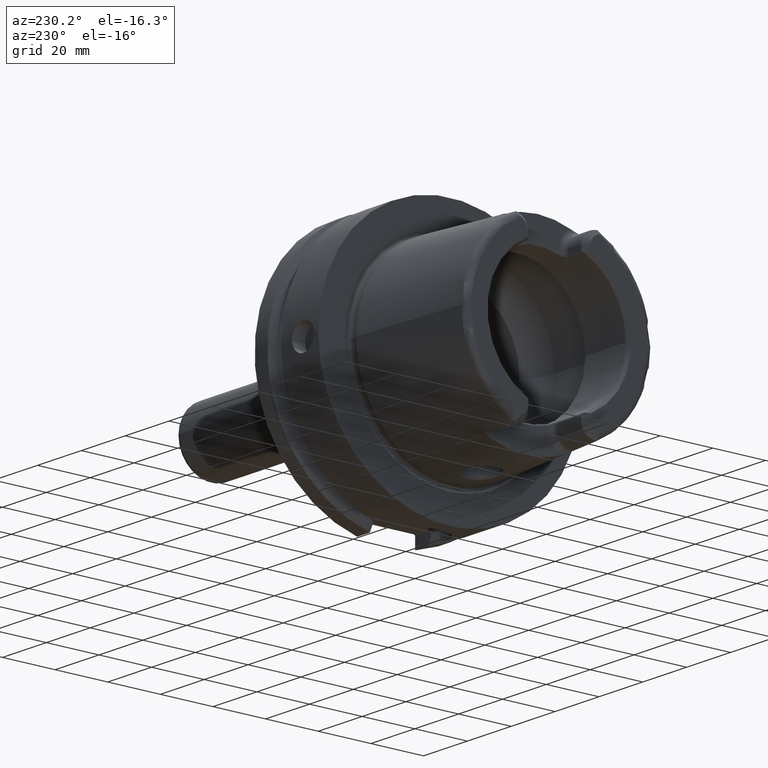
[diagram: clean part render]
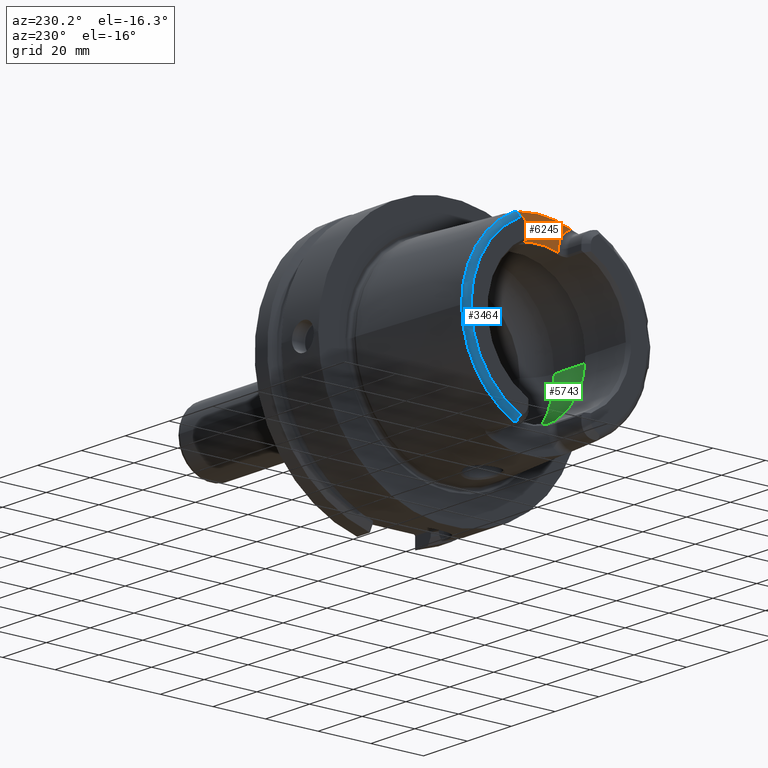
[diagram: same view with three faces highlighted in distinct colors, each labeled with its STEP entity id]
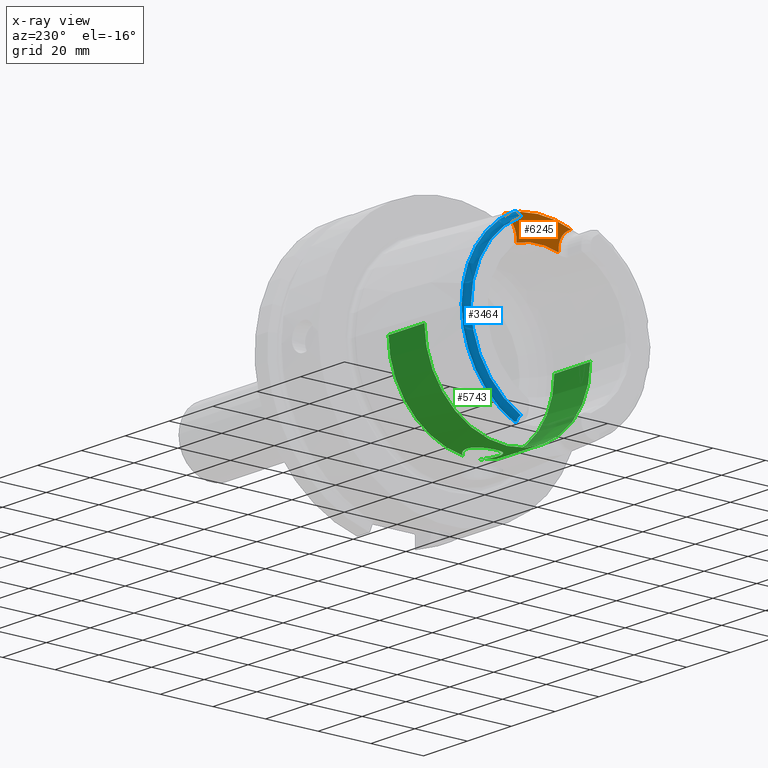
[diagram: x-ray of the same camera — body ghosted, the three highlighted faces saturated]
A machine part, auxiliary view with three faces highlighted in distinct colors.
The next image is the same camera in x-ray (body ghosted, the three faces saturated) — at least one of them is partly hidden behind the body in this view.
Their STEP definitions:

[orange] entity #6245 — the highlighted planar face has unit normal (-1, 0, 0).
#9=CARTESIAN_POINT('',(-4.E1,0.E0,0.E0));
#10=DIRECTION('',(1.E0,0.E0,0.E0));
#11=DIRECTION('',(0.E0,3.574556786365E-1,9.339301032789E-1));
#12=AXIS2_PLACEMENT_3D('',#9,#10,#11);
#2548=DIRECTION('',(0.E0,5.174062213620E-12,1.E0));
#2549=VECTOR('',#2548,1.199558594508E0);
#2550=CARTESIAN_POINT('',(-4.E1,8.009999999994E0,2.576044140549E1));
#2551=LINE('',#2550,#2549);
#2552=CARTESIAN_POINT('',(-4.E1,1.501E1,2.696E1));
#2553=DIRECTION('',(-1.E0,0.E0,0.E0));
#2554=DIRECTION('',(0.E0,-1.E0,0.E0));
#2555=AXIS2_PLACEMENT_3D('',#2552,#2553,#2554);
#2557=CARTESIAN_POINT('',(-4.E1,-1.501E1,2.696E1));
#2558=DIRECTION('',(-1.E0,0.E0,0.E0));
#2559=DIRECTION('',(0.E0,3.057634963159E-1,9.521074962002E-1));
#2560=AXIS2_PLACEMENT_3D('',#2557,#2558,#2559);
#2562=DIRECTION('',(0.E0,6.866664706538E-12,-1.E0));
#2563=VECTOR('',#2562,1.199558594503E0);
#2564=CARTESIAN_POINT('',(-4.E1,-8.010000000001E0,2.695999999999E1));
#2565=LINE('',#2564,#2563);
#2566=CARTESIAN_POINT('',(-4.E1,8.009999999994E0,2.576044140549E1));
#2567=CARTESIAN_POINT('',(-4.E1,7.269616392493E0,2.599521452766E1));
#2568=CARTESIAN_POINT('',(-4.E1,5.774680607733E0,2.639793295020E1));
#2569=CARTESIAN_POINT('',(-4.E1,3.481759859025E0,2.680464578135E1));
#2570=CARTESIAN_POINT('',(-4.E1,1.163574268407E0,2.700848033442E1));
#2571=CARTESIAN_POINT('',(-4.E1,-1.163574229637E0,2.700848033529E1));
#2572=CARTESIAN_POINT('',(-4.E1,-3.481759771637E0,2.680464579107E1));
#2573=CARTESIAN_POINT('',(-4.E1,-5.774680487919E0,2.639793297771E1));
#2574=CARTESIAN_POINT('',(-4.E1,-7.269616343063E0,2.599521454333E1));
#2575=CARTESIAN_POINT('',(-4.E1,-8.009999999993E0,2.576044140549E1));
#2761=CARTESIAN_POINT('',(-4.E1,8.01E0,2.696E1));
#2763=VERTEX_POINT('',#2761);
#2765=CARTESIAN_POINT('',(-4.E1,-8.01E0,2.696E1));
#2767=VERTEX_POINT('',#2765);
#2769=CARTESIAN_POINT('',(-4.E1,1.286965552579E1,3.362475247340E1));
#2770=VERTEX_POINT('',#2769);
#2775=CARTESIAN_POINT('',(-4.E1,-1.286965552579E1,3.362475247340E1));
#2776=VERTEX_POINT('',#2775);
#2817=CARTESIAN_POINT('',(-4.E1,8.009999999994E0,2.576044140549E1));
#2818=VERTEX_POINT('',#2817);
#2819=CARTESIAN_POINT('',(-4.E1,-8.009999999993E0,2.576044140549E1));
#2820=VERTEX_POINT('',#2819);
#6230=CARTESIAN_POINT('',(-4.E1,0.E0,0.E0));
#6231=DIRECTION('',(-1.E0,0.E0,0.E0));
#6232=DIRECTION('',(0.E0,0.E0,1.E0));
#6233=AXIS2_PLACEMENT_3D('',#6230,#6231,#6232);
#6234=PLANE('',#6233);
#6235=ORIENTED_EDGE('',*,*,#3379,.T.);
#6236=ORIENTED_EDGE('',*,*,#3397,.T.);
#6237=ORIENTED_EDGE('',*,*,#3164,.T.);
#6239=ORIENTED_EDGE('',*,*,#6238,.T.);
#6241=ORIENTED_EDGE('',*,*,#6240,.T.);
#6242=ORIENTED_EDGE('',*,*,#6221,.F.);
#6243=EDGE_LOOP('',(#6235,#6236,#6237,#6239,#6241,#6242));
#6244=FACE_OUTER_BOUND('',#6243,.F.);
#6245=ADVANCED_FACE('',(#6244),#6234,.T.);
#13=CIRCLE('',#12,3.60035E1);
#2556=CIRCLE('',#2555,7.E0);
#2561=CIRCLE('',#2560,7.E0);
#2576=B_SPLINE_CURVE_WITH_KNOTS('',3,(#2566,#2567,#2568,#2569,#2570,#2571,#2572,
#2573,#2574,#2575),.UNSPECIFIED.,.F.,.F.,(4,1,1,1,1,1,1,4),(0.E0,
1.428571428571E-1,2.857142857143E-1,4.285714285714E-1,5.714285714286E-1,
7.142857142857E-1,8.571428571429E-1,1.E0),.UNSPECIFIED.);
#3164=EDGE_CURVE('',#2770,#2776,#13,.T.);
#3379=EDGE_CURVE('',#2818,#2763,#2551,.T.);
#3397=EDGE_CURVE('',#2763,#2770,#2556,.T.);
#6221=EDGE_CURVE('',#2818,#2820,#2576,.T.);
#6238=EDGE_CURVE('',#2776,#2767,#2561,.T.);
#6240=EDGE_CURVE('',#2767,#2820,#2565,.T.);

[blue] entity #3464 — the highlighted toroidal blend (fillet) surface has major radius 33.6002 mm and minor (blend) radius 2 mm.
#284=CARTESIAN_POINT('',(-4.885415732441E1,1.524233599545E1,-3.196E1));
#285=CARTESIAN_POINT('',(-4.892042682917E1,1.528184575722E1,-3.190647917074E1));
#286=CARTESIAN_POINT('',(-4.904907337055E1,1.534921107261E1,-3.179688001462E1));
#287=CARTESIAN_POINT('',(-4.923089295558E1,1.541590864687E1,-3.162456500561E1));
#288=CARTESIAN_POINT('',(-4.939996141290E1,1.544678596655E1,-3.144531182725E1));
#289=CARTESIAN_POINT('',(-4.955291678113E1,1.544062482823E1,-3.126231590503E1));
#290=CARTESIAN_POINT('',(-4.968961398491E1,1.539492909283E1,-3.107422253444E1));
#291=CARTESIAN_POINT('',(-4.980222556701E1,1.531137807264E1,-3.089122966690E1));
#292=CARTESIAN_POINT('',(-4.98920182E1,1.518913217588E1,-3.071134017670E1));
#293=CARTESIAN_POINT('',(-4.995490319930E1,1.503380242251E1,-3.054277251898E1));
#294=CARTESIAN_POINT('',(-4.999193874033E1,1.484926520259E1,-3.038665452223E1));
#295=CARTESIAN_POINT('',(-5.E1,1.470886141623E1,-3.029144627288E1));
#296=CARTESIAN_POINT('',(-5.E1,1.463423248617E1,-3.024586108239E1));
#298=CARTESIAN_POINT('',(-4.810007448473E1,1.567653238626E1,-3.196E1));
#299=CARTESIAN_POINT('',(-4.814854926161E1,1.567101764283E1,-3.196E1));
#300=CARTESIAN_POINT('',(-4.824699718528E1,1.565188578280E1,-3.196E1));
#301=CARTESIAN_POINT('',(-4.840101233225E1,1.559467216883E1,-3.196E1));
#302=CARTESIAN_POINT('',(-4.855439166438E1,1.550852477714E1,-3.196E1));
#303=CARTESIAN_POINT('',(-4.870516089830E1,1.539385143023E1,-3.196E1));
#304=CARTESIAN_POINT('',(-4.880487439669E1,1.529641023181E1,-3.196E1));
#305=CARTESIAN_POINT('',(-4.885415732441E1,1.524233599545E1,-3.196E1));
#307=CARTESIAN_POINT('',(-4.810007448473E1,0.E0,0.E0));
#308=DIRECTION('',(-1.E0,0.E0,0.E0));
#309=DIRECTION('',(0.E0,1.E0,0.E0));
#310=AXIS2_PLACEMENT_3D('',#307,#308,#309);
#312=CARTESIAN_POINT('',(-4.810007448473E1,0.E0,0.E0));
#313=DIRECTION('',(1.E0,0.E0,0.E0));
#314=DIRECTION('',(0.E0,1.E0,0.E0));
#315=AXIS2_PLACEMENT_3D('',#312,#313,#314);
#317=CARTESIAN_POINT('',(-4.885415732441E1,1.524233599545E1,3.196E1));
#318=CARTESIAN_POINT('',(-4.880489671373E1,1.529638574510E1,3.196E1));
#319=CARTESIAN_POINT('',(-4.870522589790E1,1.539380534287E1,3.196E1));
#320=CARTESIAN_POINT('',(-4.855425205604E1,1.550861743949E1,3.196E1));
#321=CARTESIAN_POINT('',(-4.840102922174E1,1.559466231398E1,3.196E1));
#322=CARTESIAN_POINT('',(-4.824685927015E1,1.565193052527E1,3.196E1));
#323=CARTESIAN_POINT('',(-4.814849310230E1,1.567102403180E1,3.196E1));
#324=CARTESIAN_POINT('',(-4.810007448473E1,1.567653238626E1,3.196E1));
#326=CARTESIAN_POINT('',(-5.E1,1.463423248617E1,3.024586108239E1));
#327=CARTESIAN_POINT('',(-5.E1,1.470887052533E1,3.029145183695E1));
#328=CARTESIAN_POINT('',(-4.999193668301E1,1.484929336697E1,3.038667413649E1));
#329=CARTESIAN_POINT('',(-4.995488930905E1,1.503385996795E1,3.054282394569E1));
#330=CARTESIAN_POINT('',(-4.989197500232E1,1.518921649175E1,3.071144229779E1));
#331=CARTESIAN_POINT('',(-4.980215470263E1,1.531145218524E1,3.089135797532E1));
#332=CARTESIAN_POINT('',(-4.968951481558E1,1.539498007461E1,3.107436988164E1));
#333=CARTESIAN_POINT('',(-4.955280820452E1,1.544064650585E1,3.126245637594E1));
#334=CARTESIAN_POINT('',(-4.939976008409E1,1.544677878772E1,3.144554335861E1));
#335=CARTESIAN_POINT('',(-4.923056226109E1,1.541582067272E1,3.162489877544E1));
#336=CARTESIAN_POINT('',(-4.904873698401E1,1.534905210810E1,3.179717709171E1));
#337=CARTESIAN_POINT('',(-4.892028850269E1,1.528176328722E1,3.190659088650E1));
#338=CARTESIAN_POINT('',(-4.885415732441E1,1.524233599545E1,3.196E1));
#340=CARTESIAN_POINT('',(-5.E1,0.E0,0.E0));
#341=DIRECTION('',(-1.E0,0.E0,0.E0));
#342=DIRECTION('',(0.E0,4.355401503799E-1,9.001693048572E-1));
#343=AXIS2_PLACEMENT_3D('',#340,#341,#342);
#2717=CARTESIAN_POINT('',(-4.810007448473E1,3.559768626831E1,0.E0));
#2718=VERTEX_POINT('',#2717);
#2757=CARTESIAN_POINT('',(-4.810007448473E1,1.567653238626E1,3.196E1));
#2758=VERTEX_POINT('',#2757);
#2789=CARTESIAN_POINT('',(-5.E1,1.463423248617E1,3.024586108239E1));
#2790=VERTEX_POINT('',#2789);
#2791=VERTEX_POINT('',#338);
#2837=CARTESIAN_POINT('',(-4.810007448473E1,1.567653238626E1,-3.196E1));
#2838=VERTEX_POINT('',#2837);
#2880=CARTESIAN_POINT('',(-5.E1,1.463423248617E1,-3.024586108239E1));
#2881=VERTEX_POINT('',#2880);
#2882=VERTEX_POINT('',#284);
#3446=CARTESIAN_POINT('',(-4.8E1,0.E0,0.E0));
#3447=DIRECTION('',(1.E0,0.E0,0.E0));
#3448=DIRECTION('',(0.E0,-1.E0,0.E0));
#3449=AXIS2_PLACEMENT_3D('',#3446,#3447,#3448);
#3450=TOROIDAL_SURFACE('',#3449,3.360019156306E1,2.E0);
#3452=ORIENTED_EDGE('',*,*,#3451,.F.);
#3454=ORIENTED_EDGE('',*,*,#3453,.F.);
#3456=ORIENTED_EDGE('',*,*,#3455,.F.);
#3457=ORIENTED_EDGE('',*,*,#3172,.T.);
#3459=ORIENTED_EDGE('',*,*,#3458,.F.);
#3460=ORIENTED_EDGE('',*,*,#3437,.F.);
#3461=ORIENTED_EDGE('',*,*,#3236,.T.);
#3462=EDGE_LOOP('',(#3452,#3454,#3456,#3457,#3459,#3460,#3461));
#3463=FACE_OUTER_BOUND('',#3462,.F.);
#3464=ADVANCED_FACE('',(#3463),#3450,.T.);
#297=B_SPLINE_CURVE_WITH_KNOTS('',3,(#284,#285,#286,#287,#288,#289,#290,#291,
#292,#293,#294,#295,#296),.UNSPECIFIED.,.F.,.F.,(4,1,1,1,1,1,1,1,1,1,4),(0.E0,
1.E-1,2.E-1,3.E-1,4.E-1,5.E-1,6.E-1,7.E-1,8.E-1,9.E-1,1.E0),.UNSPECIFIED.);
#306=B_SPLINE_CURVE_WITH_KNOTS('',3,(#298,#299,#300,#301,#302,#303,#304,#305),
.UNSPECIFIED.,.F.,.F.,(4,1,1,1,1,4),(0.E0,2.E-1,4.E-1,6.E-1,8.E-1,1.E0),
.UNSPECIFIED.);
#311=CIRCLE('',#310,3.559768626831E1);
#316=CIRCLE('',#315,3.559768626831E1);
#325=B_SPLINE_CURVE_WITH_KNOTS('',3,(#317,#318,#319,#320,#321,#322,#323,#324),
.UNSPECIFIED.,.F.,.F.,(4,1,1,1,1,4),(0.E0,2.E-1,4.E-1,6.E-1,8.E-1,1.E0),
.UNSPECIFIED.);
#339=B_SPLINE_CURVE_WITH_KNOTS('',3,(#326,#327,#328,#329,#330,#331,#332,#333,
#334,#335,#336,#337,#338),.UNSPECIFIED.,.F.,.F.,(4,1,1,1,1,1,1,1,1,1,4),(0.E0,
1.E-1,2.E-1,3.E-1,4.E-1,5.E-1,6.E-1,7.E-1,8.E-1,9.E-1,1.E0),.UNSPECIFIED.);
#344=CIRCLE('',#343,3.360019156306E1);
#3172=EDGE_CURVE('',#2718,#2758,#316,.T.);
#3236=EDGE_CURVE('',#2790,#2881,#344,.T.);
#3437=EDGE_CURVE('',#2790,#2791,#339,.T.);
#3451=EDGE_CURVE('',#2882,#2881,#297,.T.);
#3453=EDGE_CURVE('',#2838,#2882,#306,.T.);
#3455=EDGE_CURVE('',#2718,#2838,#311,.T.);
#3458=EDGE_CURVE('',#2791,#2758,#325,.T.);

[green] entity #5743 — the highlighted cylindrical surface (partial cylindrical patch) has radius 31.5 mm, axis along (1, 0, 0).
#2143=CARTESIAN_POINT('',(-2.1E1,0.E0,-3.15E1));
#2144=CARTESIAN_POINT('',(-2.1E1,2.600323061180E-1,-3.15E1));
#2145=CARTESIAN_POINT('',(-2.096661770669E1,7.780092125203E-1,
-3.149361511448E1));
#2146=CARTESIAN_POINT('',(-2.081253217207E1,1.557831356964E0,
-3.146462024253E1));
#2147=CARTESIAN_POINT('',(-2.055574570683E1,2.311276553665E0,
-3.141793916189E1));
#2148=CARTESIAN_POINT('',(-2.020626936033E1,3.016750289566E0,
-3.135769789056E1));
#2149=CARTESIAN_POINT('',(-1.976601122444E1,3.673722414515E0,
-3.128719166027E1));
#2150=CARTESIAN_POINT('',(-1.923610094251E1,4.274362244914E0,
-3.121038529168E1));
#2151=CARTESIAN_POINT('',(-1.863192887465E1,4.797669158712E0,
-3.113374177159E1));
#2152=CARTESIAN_POINT('',(-1.797705422937E1,5.228767812436E0,
-3.106381618043E1));
#2153=CARTESIAN_POINT('',(-1.727328312497E1,5.571149218893E0,
-3.100390713215E1));
#2154=CARTESIAN_POINT('',(-1.652528168161E1,5.820750549838E0,
-3.095774716752E1));
#2155=CARTESIAN_POINT('',(-1.575298047354E1,5.969558117876E0,
-3.092922682144E1));
#2156=CARTESIAN_POINT('',(-1.497973962537E1,6.016520952670E0,
-3.092007277754E1));
#2157=CARTESIAN_POINT('',(-1.420754911889E1,5.964156360884E0,
-3.093027435868E1));
#2158=CARTESIAN_POINT('',(-1.345027932885E1,5.813467932253E0,
-3.095911415652E1));
#2159=CARTESIAN_POINT('',(-1.271967870279E1,5.567549612701E0,
-3.100453585674E1));
#2160=CARTESIAN_POINT('',(-1.202654252881E1,5.230424035329E0,
-3.106352122481E1));
#2161=CARTESIAN_POINT('',(-1.137895123984E1,4.805016643732E0,
-3.113255162345E1));
#2162=CARTESIAN_POINT('',(-1.079033967049E1,4.298901630879E0,
-3.120689445852E1));
#2163=CARTESIAN_POINT('',(-1.027063116687E1,3.719239024479E0,
-3.128166258912E1));
#2164=CARTESIAN_POINT('',(-9.979348326781E0,3.295456177510E0,
-3.132794036358E1));
#2165=CARTESIAN_POINT('',(-9.846794344809E0,3.073185883624E0,
-3.134972932139E1));
#2167=CARTESIAN_POINT('',(-9.846794344809E0,-3.073185883624E0,
-3.134972932139E1));
#2168=CARTESIAN_POINT('',(-9.980267592034E0,-3.296997627679E0,
-3.132778925661E1));
#2169=CARTESIAN_POINT('',(-1.027428374945E1,-3.724632451493E0,
-3.128107498049E1));
#2170=CARTESIAN_POINT('',(-1.080444609373E1,-4.313598102782E0,
-3.120491822807E1));
#2171=CARTESIAN_POINT('',(-1.140518288188E1,-4.825083200941E0,
-3.112945268139E1));
#2172=CARTESIAN_POINT('',(-1.205830347901E1,-5.248491279341E0,
-3.106046243563E1));
#2173=CARTESIAN_POINT('',(-1.275973274351E1,-5.584361629649E0,
-3.100151169777E1));
#2174=CARTESIAN_POINT('',(-1.350804961755E1,-5.829351893619E0,
-3.095611954416E1));
#2175=CARTESIAN_POINT('',(-1.428046132242E1,-5.973692441151E0,
-3.092842373405E1));
#2176=CARTESIAN_POINT('',(-1.505471261768E1,-6.016295068305E0,
-3.092011685270E1));
#2177=CARTESIAN_POINT('',(-1.582807827324E1,-5.959638584634E0,
-3.093115085218E1));
#2178=CARTESIAN_POINT('',(-1.659844154856E1,-5.801063635706E0,
-3.096146461693E1));
#2179=CARTESIAN_POINT('',(-1.734174730538E1,-5.542557460315E0,
-3.100905659353E1));
#2180=CARTESIAN_POINT('',(-1.803699861300E1,-5.193928840565E0,
-3.106968398001E1));
#2181=CARTESIAN_POINT('',(-1.868261407792E1,-4.758494760219E0,
-3.113976584786E1));
#2182=CARTESIAN_POINT('',(-1.927492183405E1,-4.234938547310E0,
-3.121575046881E1));
#2183=CARTESIAN_POINT('',(-1.979338991235E1,-3.637181048324E0,
-3.129142862807E1));
#2184=CARTESIAN_POINT('',(-2.022350943177E1,-2.985970626913E0,
-3.136060026546E1));
#2185=CARTESIAN_POINT('',(-2.056558062715E1,-2.286490117879E0,
-3.141969944443E1));
#2186=CARTESIAN_POINT('',(-2.081663060842E1,-1.540888222611E0,
-3.146538707330E1));
#2187=CARTESIAN_POINT('',(-2.096737197130E1,-7.693136660163E-1,
-3.149375977797E1));
#2188=CARTESIAN_POINT('',(-2.1E1,-2.570924323293E-1,-3.15E1));
#2189=CARTESIAN_POINT('',(-2.1E1,0.E0,-3.15E1));
#2191=CARTESIAN_POINT('',(-9.846794344809E0,0.E0,0.E0));
#2192=DIRECTION('',(-1.E0,0.E0,0.E0));
#2193=DIRECTION('',(0.E0,-9.756145662299E-2,-9.952295022665E-1));
#2194=AXIS2_PLACEMENT_3D('',#2191,#2192,#2193);
#2196=DIRECTION('',(-1.E0,0.E0,0.E0));
#2197=VECTOR('',#2196,1.640380457843E1);
#2198=CARTESIAN_POINT('',(-9.846794344809E0,-3.15E1,0.E0));
#2199=LINE('',#2198,#2197);
#2200=DIRECTION('',(-1.E0,0.E0,0.E0));
#2201=VECTOR('',#2200,1.640380457843E1);
#2202=CARTESIAN_POINT('',(-9.846794344809E0,3.15E1,0.E0));
#2203=LINE('',#2202,#2201);
#2204=CARTESIAN_POINT('',(-9.846794344809E0,0.E0,0.E0));
#2205=DIRECTION('',(-1.E0,0.E0,0.E0));
#2206=DIRECTION('',(0.E0,1.E0,0.E0));
#2207=AXIS2_PLACEMENT_3D('',#2204,#2205,#2206);
#2209=CARTESIAN_POINT('',(-9.846794344809E0,3.073185883624E0,
-3.134972932139E1));
#2240=CARTESIAN_POINT('',(-9.846794344809E0,-3.073185883624E0,
-3.134972932139E1));
#2443=CARTESIAN_POINT('',(-2.625059892324E1,0.E0,0.E0));
#2444=DIRECTION('',(-1.E0,0.E0,0.E0));
#2445=DIRECTION('',(0.E0,1.E0,0.E0));
#2446=AXIS2_PLACEMENT_3D('',#2443,#2444,#2445);
#2735=CARTESIAN_POINT('',(-9.846794344809E0,3.15E1,0.E0));
#2736=VERTEX_POINT('',#2735);
#2737=CARTESIAN_POINT('',(-2.625059892324E1,3.15E1,0.E0));
#2738=VERTEX_POINT('',#2737);
#2747=CARTESIAN_POINT('',(-9.846794344809E0,-3.15E1,0.E0));
#2748=VERTEX_POINT('',#2747);
#2749=CARTESIAN_POINT('',(-2.625059892324E1,-3.15E1,0.E0));
#2750=VERTEX_POINT('',#2749);
#2918=VERTEX_POINT('',#2209);
#2920=VERTEX_POINT('',#2240);
#2921=VERTEX_POINT('',#2143);
#5726=CARTESIAN_POINT('',(-5.3125E1,0.E0,0.E0));
#5727=DIRECTION('',(1.E0,0.E0,0.E0));
#5728=DIRECTION('',(0.E0,-1.E0,0.E0));
#5729=AXIS2_PLACEMENT_3D('',#5726,#5727,#5728);
#5730=CYLINDRICAL_SURFACE('',#5729,3.15E1);
#5731=ORIENTED_EDGE('',*,*,#5680,.F.);
#5732=ORIENTED_EDGE('',*,*,#5408,.F.);
#5734=ORIENTED_EDGE('',*,*,#5733,.T.);
#5735=ORIENTED_EDGE('',*,*,#5719,.T.);
#5737=ORIENTED_EDGE('',*,*,#5736,.F.);
#5738=ORIENTED_EDGE('',*,*,#5715,.F.);
#5740=ORIENTED_EDGE('',*,*,#5739,.T.);
#5741=EDGE_LOOP('',(#5731,#5732,#5734,#5735,#5737,#5738,#5740));
#5742=FACE_OUTER_BOUND('',#5741,.F.);
#5743=ADVANCED_FACE('',(#5742),#5730,.F.);
#2166=B_SPLINE_CURVE_WITH_KNOTS('',3,(#2143,#2144,#2145,#2146,#2147,#2148,#2149,
#2150,#2151,#2152,#2153,#2154,#2155,#2156,#2157,#2158,#2159,#2160,#2161,#2162,
#2163,#2164,#2165),.UNSPECIFIED.,.F.,.F.,(4,1,1,1,1,1,1,1,1,1,1,1,1,1,1,1,1,1,1,
1,4),(0.E0,5.E-2,1.E-1,1.5E-1,2.E-1,2.5E-1,3.E-1,3.5E-1,4.E-1,4.5E-1,5.E-1,
5.5E-1,6.E-1,6.5E-1,7.E-1,7.5E-1,8.E-1,8.5E-1,9.E-1,9.5E-1,1.E0),.UNSPECIFIED.);
#2190=B_SPLINE_CURVE_WITH_KNOTS('',3,(#2167,#2168,#2169,#2170,#2171,#2172,#2173,
#2174,#2175,#2176,#2177,#2178,#2179,#2180,#2181,#2182,#2183,#2184,#2185,#2186,
#2187,#2188,#2189),.UNSPECIFIED.,.F.,.F.,(4,1,1,1,1,1,1,1,1,1,1,1,1,1,1,1,1,1,1,
1,4),(0.E0,5.E-2,1.E-1,1.5E-1,2.E-1,2.5E-1,3.E-1,3.5E-1,4.E-1,4.5E-1,5.E-1,
5.5E-1,6.E-1,6.5E-1,7.E-1,7.5E-1,8.E-1,8.5E-1,9.E-1,9.5E-1,1.E0),.UNSPECIFIED.);
#2195=CIRCLE('',#2194,3.15E1);
#2208=CIRCLE('',#2207,3.15E1);
#2447=CIRCLE('',#2446,3.15E1);
#5408=EDGE_CURVE('',#2920,#2921,#2190,.T.);
#5680=EDGE_CURVE('',#2921,#2918,#2166,.T.);
#5715=EDGE_CURVE('',#2736,#2738,#2203,.T.);
#5719=EDGE_CURVE('',#2748,#2750,#2199,.T.);
#5733=EDGE_CURVE('',#2920,#2748,#2195,.T.);
#5736=EDGE_CURVE('',#2738,#2750,#2447,.T.);
#5739=EDGE_CURVE('',#2736,#2918,#2208,.T.);